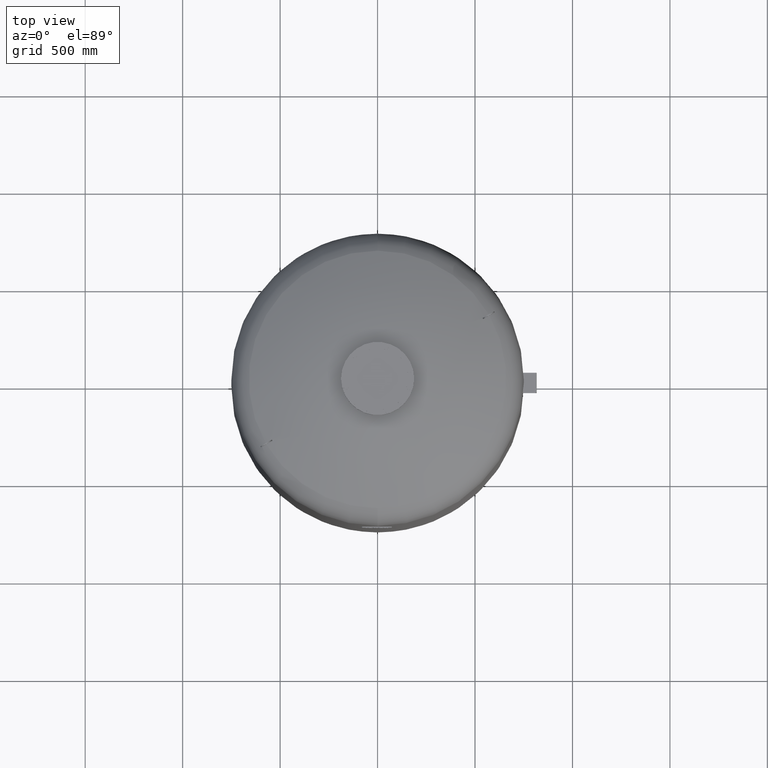
[diagram: clean part render]
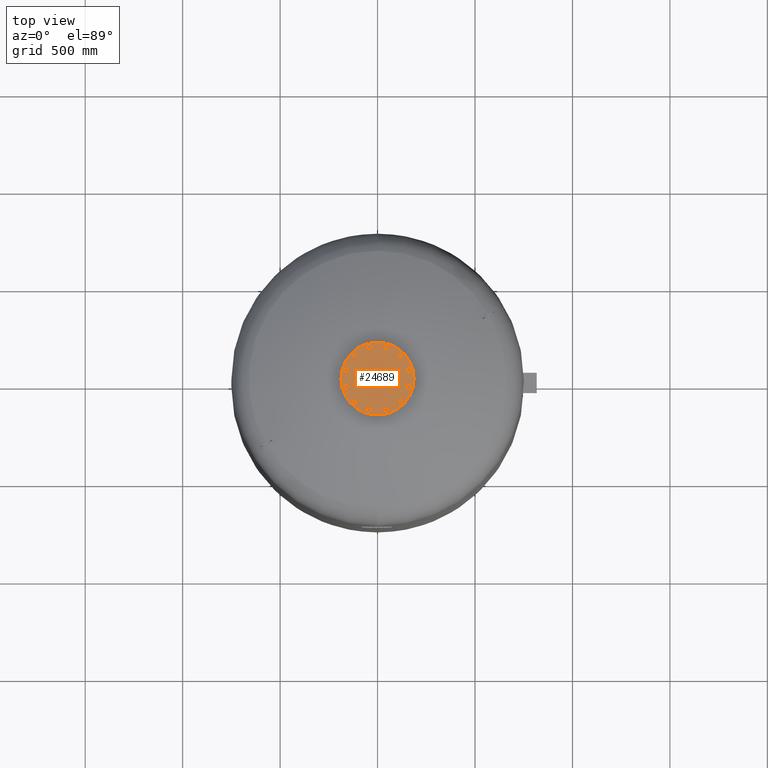
[diagram: same view with one face highlighted and labeled with its STEP entity id]
A machine part, top view. The second image highlights one B-rep face of the part: STEP entity #24689.
In plain terms, the highlighted planar face has unit normal (0, 0, 1).
Its self-contained STEP definition (entity closure, byte-faithful):
#16927=CARTESIAN_POINT('',(-187.500000000000000,0.0,3055.0));
#16928=VERTEX_POINT('',#16927);
#16944=CARTESIAN_POINT('',(187.500000000000000,-2.296137E-014,3055.0));
#16945=VERTEX_POINT('',#16944);
#16952=CARTESIAN_POINT('',(0.0,0.0,3055.0));
#16953=DIRECTION('',(0.0,0.0,-1.0));
#16954=DIRECTION('',(-1.0,0.0,0.0));
#16955=AXIS2_PLACEMENT_3D('',#16952,#16953,#16954);
#16956=CIRCLE('',#16955,187.500000000000000);
#16957=EDGE_CURVE('',#16945,#16928,#16956,.T.);
#22183=CARTESIAN_POINT('',(157.729139400922860,30.104983413641008,3055.0));
#22184=VERTEX_POINT('',#22183);
#22185=CARTESIAN_POINT('',(148.288440171855850,40.247625971983268,3055.0));
#22186=VERTEX_POINT('',#22185);
#22187=CARTESIAN_POINT('',(157.729139400922860,30.104983413641008,3055.0));
#22188=DIRECTION('',(-0.681323780155013,0.731982176419128,0.0));
#22189=VECTOR('',#22188,13.856406460551090);
#22190=LINE('',#22187,#22189);
#22191=EDGE_CURVE('',#22184,#22186,#22190,.T.);
#22223=CARTESIAN_POINT('',(171.233275132485970,33.209547496330110,3055.0));
#22224=VERTEX_POINT('',#22223);
#22225=CARTESIAN_POINT('',(171.233275132485970,33.209547496330110,3055.0));
#22226=DIRECTION('',(-0.974577049973894,-0.224052613607123,0.0));
#22227=VECTOR('',#22226,13.856406460551119);
#22228=LINE('',#22225,#22227);
#22229=EDGE_CURVE('',#22224,#22184,#22228,.T.);
#22254=CARTESIAN_POINT('',(175.296711634982050,46.456754137361422,3055.0));
#22255=VERTEX_POINT('',#22254);
#22256=CARTESIAN_POINT('',(175.296711634982050,46.456754137361422,3055.0));
#22257=DIRECTION('',(-0.293253269818881,-0.956034790026249,0.0));
#22258=VECTOR('',#22257,13.856406460551076);
#22259=LINE('',#22256,#22258);
#22260=EDGE_CURVE('',#22255,#22224,#22259,.T.);
#22285=CARTESIAN_POINT('',(152.351876674351930,53.494832613014587,3055.0));
#22286=VERTEX_POINT('',#22285);
#22287=CARTESIAN_POINT('',(148.288440171855850,40.247625971983268,3055.0));
#22288=DIRECTION('',(0.293253269818881,0.956034790026249,0.0));
#22289=VECTOR('',#22288,13.856406460551083);
#22290=LINE('',#22287,#22289);
#22291=EDGE_CURVE('',#22186,#22286,#22290,.T.);
#22316=CARTESIAN_POINT('',(165.856012405915040,56.599396695703689,3055.0));
#22317=VERTEX_POINT('',#22316);
#22318=CARTESIAN_POINT('',(152.351876674351930,53.494832613014587,3055.0));
#22319=DIRECTION('',(0.974577049973894,0.224052613607123,0.0));
#22320=VECTOR('',#22319,13.856406460551119);
#22321=LINE('',#22318,#22320);
#22322=EDGE_CURVE('',#22286,#22317,#22321,.T.);
#22347=CARTESIAN_POINT('',(165.856012405915040,56.599396695703689,3055.0));
#22348=DIRECTION('',(0.681323780155012,-0.731982176419129,0.0));
#22349=VECTOR('',#22348,13.856406460551096);
#22350=LINE('',#22347,#22349);
#22351=EDGE_CURVE('',#22317,#22255,#22350,.T.);
#22383=CARTESIAN_POINT('',(121.544949931435720,104.936250117183760,3055.0));
#22384=VERTEX_POINT('',#22383);
#22385=CARTESIAN_POINT('',(108.297743290404380,108.999686619679820,3055.0));
#22386=VERTEX_POINT('',#22385);
#22387=CARTESIAN_POINT('',(121.544949931435720,104.936250117183760,3055.0));
#22388=DIRECTION('',(-0.956034790026250,0.293253269818880,0.0));
#22389=VECTOR('',#22388,13.856406460551101);
#22390=LINE('',#22387,#22389);
#22391=EDGE_CURVE('',#22384,#22386,#22390,.T.);
#22423=CARTESIAN_POINT('',(131.687592489777960,114.376949346250780,3055.0));
#22424=VERTEX_POINT('',#22423);
#22425=CARTESIAN_POINT('',(131.687592489777960,114.376949346250780,3055.0));
#22426=DIRECTION('',(-0.731982176419127,-0.681323780155014,0.0));
#22427=VECTOR('',#22426,13.856406460551080);
#22428=LINE('',#22425,#22427);
#22429=EDGE_CURVE('',#22424,#22384,#22428,.T.);
#22454=CARTESIAN_POINT('',(128.583028407088880,127.881085077813880,3055.0));
#22455=VERTEX_POINT('',#22454);
#22456=CARTESIAN_POINT('',(128.583028407088880,127.881085077813880,3055.0));
#22457=DIRECTION('',(0.224052613607122,-0.974577049973894,0.0));
#22458=VECTOR('',#22457,13.856406460551099);
#22459=LINE('',#22456,#22458);
#22460=EDGE_CURVE('',#22455,#22424,#22459,.T.);
#22485=CARTESIAN_POINT('',(105.193179207715300,122.503822351242900,3055.0));
#22486=VERTEX_POINT('',#22485);
#22487=CARTESIAN_POINT('',(108.297743290404380,108.999686619679820,3055.0));
#22488=DIRECTION('',(-0.224052613607122,0.974577049973894,0.0));
#22489=VECTOR('',#22488,13.856406460551087);
#22490=LINE('',#22487,#22489);
#22491=EDGE_CURVE('',#22386,#22486,#22490,.T.);
#22516=CARTESIAN_POINT('',(115.335821766057560,131.944521580309950,3055.0));
#22517=VERTEX_POINT('',#22516);
#22518=CARTESIAN_POINT('',(105.193179207715300,122.503822351242900,3055.0));
#22519=DIRECTION('',(0.731982176419127,0.681323780155014,0.0));
#22520=VECTOR('',#22519,13.856406460551121);
#22521=LINE('',#22518,#22520);
#22522=EDGE_CURVE('',#22486,#22517,#22521,.T.);
#22547=CARTESIAN_POINT('',(115.335821766057560,131.944521580309950,3055.0));
#22548=DIRECTION('',(0.956034790026249,-0.293253269818881,0.0));
#22549=VECTOR('',#22548,13.856406460551076);
#22550=LINE('',#22547,#22549);
#22551=EDGE_CURVE('',#22517,#22455,#22550,.T.);
#22583=CARTESIAN_POINT('',(52.792889283739193,151.649933345076730,3055.0));
#22584=VERTEX_POINT('',#22583);
#22585=CARTESIAN_POINT('',(39.288753552176118,148.545369262387680,3055.0));
#22586=VERTEX_POINT('',#22585);
#22587=CARTESIAN_POINT('',(52.792889283739193,151.649933345076730,3055.0));
#22588=DIRECTION('',(-0.974577049973894,-0.224052613607120,0.0));
#22589=VECTOR('',#22588,13.856406460551073);
#22590=LINE('',#22587,#22589);
#22591=EDGE_CURVE('',#22584,#22586,#22590,.T.);
#22623=CARTESIAN_POINT('',(56.856325786235274,164.897139986108100,3055.0));
#22624=VERTEX_POINT('',#22623);
#22625=CARTESIAN_POINT('',(56.856325786235274,164.897139986108100,3055.0));
#22626=DIRECTION('',(-0.293253269818881,-0.956034790026249,0.0));
#22627=VECTOR('',#22626,13.856406460551133);
#22628=LINE('',#22625,#22627);
#22629=EDGE_CURVE('',#22624,#22584,#22628,.T.);
#22654=CARTESIAN_POINT('',(47.415626557168267,175.039782544450330,3055.0));
#22655=VERTEX_POINT('',#22654);
#22656=CARTESIAN_POINT('',(47.415626557168267,175.039782544450330,3055.0));
#22657=DIRECTION('',(0.681323780155014,-0.731982176419128,0.0));
#22658=VECTOR('',#22657,13.856406460551069);
#22659=LINE('',#22656,#22658);
#22660=EDGE_CURVE('',#22655,#22624,#22659,.T.);
#22685=CARTESIAN_POINT('',(29.848054323109103,158.688011820729910,3055.0));
#22686=VERTEX_POINT('',#22685);
#22687=CARTESIAN_POINT('',(39.288753552176118,148.545369262387680,3055.0));
#22688=DIRECTION('',(-0.681323780155014,0.731982176419127,0.0));
#22689=VECTOR('',#22688,13.856406460551076);
#22690=LINE('',#22687,#22689);
#22691=EDGE_CURVE('',#22586,#22686,#22690,.T.);
#22716=CARTESIAN_POINT('',(33.911490825605156,171.935218461761250,3055.0));
#22717=VERTEX_POINT('',#22716);
#22718=CARTESIAN_POINT('',(29.848054323109103,158.688011820729910,3055.0));
#22719=DIRECTION('',(0.293253269818879,0.956034790026250,0.0));
#22720=VECTOR('',#22719,13.856406460551097);
#22721=LINE('',#22718,#22720);
#22722=EDGE_CURVE('',#22686,#22717,#22721,.T.);
#22747=CARTESIAN_POINT('',(33.911490825605156,171.935218461761250,3055.0));
#22748=DIRECTION('',(0.974577049973894,0.224052613607121,0.0));
#22749=VECTOR('',#22748,13.856406460551113);
#22750=LINE('',#22747,#22749);
#22751=EDGE_CURVE('',#22717,#22655,#22750,.T.);
#22783=CARTESIAN_POINT('',(-30.104983413641008,157.729139400922860,3055.0));
#22784=VERTEX_POINT('',#22783);
#22785=CARTESIAN_POINT('',(-40.247625971983268,148.288440171855850,3055.0));
#22786=VERTEX_POINT('',#22785);
#22787=CARTESIAN_POINT('',(-30.104983413641008,157.729139400922860,3055.0));
#22788=DIRECTION('',(-0.731982176419128,-0.681323780155013,0.0));
#22789=VECTOR('',#22788,13.856406460551090);
#22790=LINE('',#22787,#22789);
#22791=EDGE_CURVE('',#22784,#22786,#22790,.T.);
#22823=CARTESIAN_POINT('',(-33.209547496330110,171.233275132485970,3055.0));
#22824=VERTEX_POINT('',#22823);
#22825=CARTESIAN_POINT('',(-33.209547496330110,171.233275132485970,3055.0));
#22826=DIRECTION('',(0.224052613607123,-0.974577049973894,0.0));
#22827=VECTOR('',#22826,13.856406460551119);
#22828=LINE('',#22825,#22827);
#22829=EDGE_CURVE('',#22824,#22784,#22828,.T.);
#22854=CARTESIAN_POINT('',(-46.456754137361422,175.296711634982050,3055.0));
#22855=VERTEX_POINT('',#22854);
#22856=CARTESIAN_POINT('',(-46.456754137361422,175.296711634982050,3055.0));
#22857=DIRECTION('',(0.956034790026249,-0.293253269818881,0.0));
#22858=VECTOR('',#22857,13.856406460551076);
#22859=LINE('',#22856,#22858);
#22860=EDGE_CURVE('',#22855,#22824,#22859,.T.);
#22885=CARTESIAN_POINT('',(-53.494832613014587,152.351876674351930,3055.0));
#22886=VERTEX_POINT('',#22885);
#22887=CARTESIAN_POINT('',(-40.247625971983268,148.288440171855850,3055.0));
#22888=DIRECTION('',(-0.956034790026249,0.293253269818881,0.0));
#22889=VECTOR('',#22888,13.856406460551083);
#22890=LINE('',#22887,#22889);
#22891=EDGE_CURVE('',#22786,#22886,#22890,.T.);
#22916=CARTESIAN_POINT('',(-56.599396695703689,165.856012405915040,3055.0));
#22917=VERTEX_POINT('',#22916);
#22918=CARTESIAN_POINT('',(-53.494832613014587,152.351876674351930,3055.0));
#22919=DIRECTION('',(-0.224052613607123,0.974577049973894,0.0));
#22920=VECTOR('',#22919,13.856406460551119);
#22921=LINE('',#22918,#22920);
#22922=EDGE_CURVE('',#22886,#22917,#22921,.T.);
#22947=CARTESIAN_POINT('',(-56.599396695703689,165.856012405915040,3055.0));
#22948=DIRECTION('',(0.731982176419129,0.681323780155012,0.0));
#22949=VECTOR('',#22948,13.856406460551096);
#22950=LINE('',#22947,#22949);
#22951=EDGE_CURVE('',#22917,#22855,#22950,.T.);
#22983=CARTESIAN_POINT('',(-104.936250117183700,121.544949931435750,3055.0));
#22984=VERTEX_POINT('',#22983);
#22985=CARTESIAN_POINT('',(-108.999686619679760,108.297743290404440,3055.0));
#22986=VERTEX_POINT('',#22985);
#22987=CARTESIAN_POINT('',(-104.936250117183700,121.544949931435750,3055.0));
#22988=DIRECTION('',(-0.293253269818880,-0.956034790026249,0.0));
#22989=VECTOR('',#22988,13.856406460551073);
#22990=LINE('',#22987,#22989);
#22991=EDGE_CURVE('',#22984,#22986,#22990,.T.);
#23023=CARTESIAN_POINT('',(-114.376949346250730,131.687592489778010,3055.0));
#23024=VERTEX_POINT('',#23023);
#23025=CARTESIAN_POINT('',(-114.376949346250730,131.687592489778010,3055.0));
#23026=DIRECTION('',(0.681323780155013,-0.731982176419128,0.0));
#23027=VECTOR('',#23026,13.856406460551101);
#23028=LINE('',#23025,#23027);
#23029=EDGE_CURVE('',#23024,#22984,#23028,.T.);
#23054=CARTESIAN_POINT('',(-127.881085077813810,128.583028407088930,3055.0));
#23055=VERTEX_POINT('',#23054);
#23056=CARTESIAN_POINT('',(-127.881085077813810,128.583028407088930,3055.0));
#23057=DIRECTION('',(0.974577049973894,0.224052613607122,0.0));
#23058=VECTOR('',#23057,13.856406460551087);
#23059=LINE('',#23056,#23058);
#23060=EDGE_CURVE('',#23055,#23024,#23059,.T.);
#23085=CARTESIAN_POINT('',(-122.503822351242850,105.193179207715360,3055.0));
#23086=VERTEX_POINT('',#23085);
#23087=CARTESIAN_POINT('',(-108.999686619679760,108.297743290404440,3055.0));
#23088=DIRECTION('',(-0.974577049973894,-0.224052613607122,0.0));
#23089=VECTOR('',#23088,13.856406460551087);
#23090=LINE('',#23087,#23089);
#23091=EDGE_CURVE('',#22986,#23086,#23090,.T.);
#23116=CARTESIAN_POINT('',(-131.944521580309900,115.335821766057620,3055.0));
#23117=VERTEX_POINT('',#23116);
#23118=CARTESIAN_POINT('',(-122.503822351242850,105.193179207715360,3055.0));
#23119=DIRECTION('',(-0.681323780155014,0.731982176419127,0.0));
#23120=VECTOR('',#23119,13.856406460551121);
#23121=LINE('',#23118,#23120);
#23122=EDGE_CURVE('',#23086,#23117,#23121,.T.);
#23147=CARTESIAN_POINT('',(-131.944521580309900,115.335821766057620,3055.0));
#23148=DIRECTION('',(0.293253269818882,0.956034790026249,0.0));
#23149=VECTOR('',#23148,13.856406460551081);
#23150=LINE('',#23147,#23149);
#23151=EDGE_CURVE('',#23117,#23055,#23150,.T.);
#23183=CARTESIAN_POINT('',(-151.649933345076730,52.792889283739214,3055.0));
#23184=VERTEX_POINT('',#23183);
#23185=CARTESIAN_POINT('',(-148.545369262387650,39.288753552176125,3055.0));
#23186=VERTEX_POINT('',#23185);
#23187=CARTESIAN_POINT('',(-151.649933345076730,52.792889283739214,3055.0));
#23188=DIRECTION('',(0.224052613607122,-0.974577049973894,0.0));
#23189=VECTOR('',#23188,13.856406460551092);
#23190=LINE('',#23187,#23189);
#23191=EDGE_CURVE('',#23184,#23186,#23190,.T.);
#23223=CARTESIAN_POINT('',(-164.897139986108100,56.856325786235296,3055.0));
#23224=VERTEX_POINT('',#23223);
#23225=CARTESIAN_POINT('',(-164.897139986108100,56.856325786235296,3055.0));
#23226=DIRECTION('',(0.956034790026249,-0.293253269818881,0.0));
#23227=VECTOR('',#23226,13.856406460551133);
#23228=LINE('',#23225,#23227);
#23229=EDGE_CURVE('',#23224,#23184,#23228,.T.);
#23254=CARTESIAN_POINT('',(-175.039782544450300,47.415626557168260,3055.0));
#23255=VERTEX_POINT('',#23254);
#23256=CARTESIAN_POINT('',(-175.039782544450300,47.415626557168260,3055.0));
#23257=DIRECTION('',(0.731982176419126,0.681323780155016,0.0));
#23258=VECTOR('',#23257,13.856406460551069);
#23259=LINE('',#23256,#23258);
#23260=EDGE_CURVE('',#23255,#23224,#23259,.T.);
#23285=CARTESIAN_POINT('',(-158.688011820729910,29.848054323109110,3055.0));
#23286=VERTEX_POINT('',#23285);
#23287=CARTESIAN_POINT('',(-148.545369262387650,39.288753552176125,3055.0));
#23288=DIRECTION('',(-0.731982176419128,-0.681323780155013,0.0));
#23289=VECTOR('',#23288,13.856406460551096);
#23290=LINE('',#23287,#23289);
#23291=EDGE_CURVE('',#23186,#23286,#23290,.T.);
#23316=CARTESIAN_POINT('',(-171.935218461761250,33.911490825605171,3055.0));
#23317=VERTEX_POINT('',#23316);
#23318=CARTESIAN_POINT('',(-158.688011820729910,29.848054323109110,3055.0));
#23319=DIRECTION('',(-0.956034790026250,0.293253269818880,0.0));
#23320=VECTOR('',#23319,13.856406460551101);
#23321=LINE('',#23318,#23320);
#23322=EDGE_CURVE('',#23286,#23317,#23321,.T.);
#23347=CARTESIAN_POINT('',(-171.935218461761250,33.911490825605171,3055.0));
#23348=DIRECTION('',(-0.224052613607120,0.974577049973894,0.0));
#23349=VECTOR('',#23348,13.856406460551087);
#23350=LINE('',#23347,#23349);
#23351=EDGE_CURVE('',#23317,#23255,#23350,.T.);
#23383=CARTESIAN_POINT('',(-157.729139400922860,-30.104983413640987,3055.0));
#23384=VERTEX_POINT('',#23383);
#23385=CARTESIAN_POINT('',(-148.288440171855850,-40.247625971983247,3055.0));
#23386=VERTEX_POINT('',#23385);
#23387=CARTESIAN_POINT('',(-157.729139400922860,-30.104983413640987,3055.0));
#23388=DIRECTION('',(0.681323780155013,-0.731982176419128,0.0));
#23389=VECTOR('',#23388,13.856406460551090);
#23390=LINE('',#23387,#23389);
#23391=EDGE_CURVE('',#23384,#23386,#23390,.T.);
#23423=CARTESIAN_POINT('',(-171.233275132486000,-33.209547496330096,3055.0));
#23424=VERTEX_POINT('',#23423);
#23425=CARTESIAN_POINT('',(-171.233275132486000,-33.209547496330096,3055.0));
#23426=DIRECTION('',(0.974577049973894,0.224052613607123,0.0));
#23427=VECTOR('',#23426,13.856406460551147);
#23428=LINE('',#23425,#23427);
#23429=EDGE_CURVE('',#23424,#23384,#23428,.T.);
#23454=CARTESIAN_POINT('',(-175.296711634982050,-46.456754137361401,3055.0));
#23455=VERTEX_POINT('',#23454);
#23456=CARTESIAN_POINT('',(-175.296711634982050,-46.456754137361401,3055.0));
#23457=DIRECTION('',(0.293253269818880,0.956034790026250,0.0));
#23458=VECTOR('',#23457,13.856406460551062);
#23459=LINE('',#23456,#23458);
#23460=EDGE_CURVE('',#23455,#23424,#23459,.T.);
#23485=CARTESIAN_POINT('',(-152.351876674351960,-53.494832613014580,3055.0));
#23486=VERTEX_POINT('',#23485);
#23487=CARTESIAN_POINT('',(-148.288440171855850,-40.247625971983247,3055.0));
#23488=DIRECTION('',(-0.293253269818883,-0.956034790026249,0.0));
#23489=VECTOR('',#23488,13.856406460551106);
#23490=LINE('',#23487,#23489);
#23491=EDGE_CURVE('',#23386,#23486,#23490,.T.);
#23516=CARTESIAN_POINT('',(-165.856012405915070,-56.599396695703646,3055.0));
#23517=VERTEX_POINT('',#23516);
#23518=CARTESIAN_POINT('',(-152.351876674351960,-53.494832613014580,3055.0));
#23519=DIRECTION('',(-0.974577049973894,-0.224052613607121,0.0));
#23520=VECTOR('',#23519,13.856406460551110);
#23521=LINE('',#23518,#23520);
#23522=EDGE_CURVE('',#23486,#23517,#23521,.T.);
#23547=CARTESIAN_POINT('',(-165.856012405915070,-56.599396695703646,3055.0));
#23548=DIRECTION('',(-0.681323780155012,0.731982176419129,0.0));
#23549=VECTOR('',#23548,13.856406460551062);
#23550=LINE('',#23547,#23549);
#23551=EDGE_CURVE('',#23517,#23455,#23550,.T.);
#23583=CARTESIAN_POINT('',(-121.544949931435750,-104.936250117183680,3055.0));
#23584=VERTEX_POINT('',#23583);
#23585=CARTESIAN_POINT('',(-108.297743290404440,-108.999686619679760,3055.0));
#23586=VERTEX_POINT('',#23585);
#23587=CARTESIAN_POINT('',(-121.544949931435750,-104.936250117183680,3055.0));
#23588=DIRECTION('',(0.956034790026249,-0.293253269818882,0.0));
#23589=VECTOR('',#23588,13.856406460551081);
#23590=LINE('',#23587,#23589);
#23591=EDGE_CURVE('',#23584,#23586,#23590,.T.);
#23623=CARTESIAN_POINT('',(-131.687592489778010,-114.376949346250730,3055.0));
#23624=VERTEX_POINT('',#23623);
#23625=CARTESIAN_POINT('',(-131.687592489778010,-114.376949346250730,3055.0));
#23626=DIRECTION('',(0.731982176419127,0.681323780155014,0.0));
#23627=VECTOR('',#23626,13.856406460551121);
#23628=LINE('',#23625,#23627);
#23629=EDGE_CURVE('',#23624,#23584,#23628,.T.);
#23654=CARTESIAN_POINT('',(-128.583028407088930,-127.881085077813790,3055.0));
#23655=VERTEX_POINT('',#23654);
#23656=CARTESIAN_POINT('',(-128.583028407088930,-127.881085077813790,3055.0));
#23657=DIRECTION('',(-0.224052613607122,0.974577049973894,0.0));
#23658=VECTOR('',#23657,13.856406460551071);
#23659=LINE('',#23656,#23658);
#23660=EDGE_CURVE('',#23655,#23624,#23659,.T.);
#23685=CARTESIAN_POINT('',(-105.193179207715360,-122.503822351242850,3055.0));
#23686=VERTEX_POINT('',#23685);
#23687=CARTESIAN_POINT('',(-108.297743290404440,-108.999686619679760,3055.0));
#23688=DIRECTION('',(0.224052613607122,-0.974577049973894,0.0));
#23689=VECTOR('',#23688,13.856406460551087);
#23690=LINE('',#23687,#23689);
#23691=EDGE_CURVE('',#23586,#23686,#23690,.T.);
#23716=CARTESIAN_POINT('',(-115.335821766057620,-131.944521580309900,3055.0));
#23717=VERTEX_POINT('',#23716);
#23718=CARTESIAN_POINT('',(-105.193179207715360,-122.503822351242850,3055.0));
#23719=DIRECTION('',(-0.731982176419127,-0.681323780155014,0.0));
#23720=VECTOR('',#23719,13.856406460551121);
#23721=LINE('',#23718,#23720);
#23722=EDGE_CURVE('',#23686,#23717,#23721,.T.);
#23747=CARTESIAN_POINT('',(-115.335821766057620,-131.944521580309900,3055.0));
#23748=DIRECTION('',(-0.956034790026249,0.293253269818883,0.0));
#23749=VECTOR('',#23748,13.856406460551085);
#23750=LINE('',#23747,#23749);
#23751=EDGE_CURVE('',#23717,#23655,#23750,.T.);
#23783=CARTESIAN_POINT('',(-52.792889283739228,-151.649933345076730,3055.0));
#23784=VERTEX_POINT('',#23783);
#23785=CARTESIAN_POINT('',(-39.288753552176132,-148.545369262387680,3055.0));
#23786=VERTEX_POINT('',#23785);
#23787=CARTESIAN_POINT('',(-52.792889283739228,-151.649933345076730,3055.0));
#23788=DIRECTION('',(0.974577049973894,0.224052613607120,0.0));
#23789=VECTOR('',#23788,13.856406460551094);
#23790=LINE('',#23787,#23789);
#23791=EDGE_CURVE('',#23784,#23786,#23790,.T.);
#23823=CARTESIAN_POINT('',(-56.856325786235296,-164.897139986108100,3055.0));
#23824=VERTEX_POINT('',#23823);
#23825=CARTESIAN_POINT('',(-56.856325786235296,-164.897139986108100,3055.0));
#23826=DIRECTION('',(0.293253269818880,0.956034790026250,0.0));
#23827=VECTOR('',#23826,13.856406460551129);
#23828=LINE('',#23825,#23827);
#23829=EDGE_CURVE('',#23824,#23784,#23828,.T.);
#23854=CARTESIAN_POINT('',(-47.415626557168281,-175.039782544450300,3055.0));
#23855=VERTEX_POINT('',#23854);
#23856=CARTESIAN_POINT('',(-47.415626557168281,-175.039782544450300,3055.0));
#23857=DIRECTION('',(-0.681323780155015,0.731982176419126,0.0));
#23858=VECTOR('',#23857,13.856406460551055);
#23859=LINE('',#23856,#23858);
#23860=EDGE_CURVE('',#23855,#23824,#23859,.T.);
#23885=CARTESIAN_POINT('',(-29.848054323109121,-158.688011820729910,3055.0));
#23886=VERTEX_POINT('',#23885);
#23887=CARTESIAN_POINT('',(-39.288753552176132,-148.545369262387680,3055.0));
#23888=DIRECTION('',(0.681323780155014,-0.731982176419127,0.0));
#23889=VECTOR('',#23888,13.856406460551073);
#23890=LINE('',#23887,#23889);
#23891=EDGE_CURVE('',#23786,#23886,#23890,.T.);
#23916=CARTESIAN_POINT('',(-33.911490825605199,-171.935218461761280,3055.0));
#23917=VERTEX_POINT('',#23916);
#23918=CARTESIAN_POINT('',(-29.848054323109121,-158.688011820729910,3055.0));
#23919=DIRECTION('',(-0.293253269818880,-0.956034790026249,0.0));
#23920=VECTOR('',#23919,13.856406460551133);
#23921=LINE('',#23918,#23920);
#23922=EDGE_CURVE('',#23886,#23917,#23921,.T.);
#23947=CARTESIAN_POINT('',(-33.911490825605199,-171.935218461761280,3055.0));
#23948=DIRECTION('',(-0.974577049973895,-0.224052613607118,0.0));
#23949=VECTOR('',#23948,13.856406460551074);
#23950=LINE('',#23947,#23949);
#23951=EDGE_CURVE('',#23917,#23855,#23950,.T.);
#23983=CARTESIAN_POINT('',(30.104983413640952,-157.729139400922890,3055.0));
#23984=VERTEX_POINT('',#23983);
#23985=CARTESIAN_POINT('',(40.247625971983211,-148.288440171855880,3055.0));
#23986=VERTEX_POINT('',#23985);
#23987=CARTESIAN_POINT('',(30.104983413640952,-157.729139400922890,3055.0));
#23988=DIRECTION('',(0.731982176419128,0.681323780155013,0.0));
#23989=VECTOR('',#23988,13.856406460551090);
#23990=LINE('',#23987,#23989);
#23991=EDGE_CURVE('',#23984,#23986,#23990,.T.);
#24023=CARTESIAN_POINT('',(33.209547496330039,-171.233275132486000,3055.0));
#24024=VERTEX_POINT('',#24023);
#24025=CARTESIAN_POINT('',(33.209547496330039,-171.233275132486000,3055.0));
#24026=DIRECTION('',(-0.224052613607122,0.974577049973894,0.0));
#24027=VECTOR('',#24026,13.856406460551115);
#24028=LINE('',#24025,#24027);
#24029=EDGE_CURVE('',#24024,#23984,#24028,.T.);
#24054=CARTESIAN_POINT('',(46.456754137361351,-175.296711634982070,3055.0));
#24055=VERTEX_POINT('',#24054);
#24056=CARTESIAN_POINT('',(46.456754137361351,-175.296711634982070,3055.0));
#24057=DIRECTION('',(-0.956034790026249,0.293253269818881,0.0));
#24058=VECTOR('',#24057,13.856406460551076);
#24059=LINE('',#24056,#24058);
#24060=EDGE_CURVE('',#24055,#24024,#24059,.T.);
#24085=CARTESIAN_POINT('',(53.494832613014523,-152.351876674351960,3055.0));
#24086=VERTEX_POINT('',#24085);
#24087=CARTESIAN_POINT('',(40.247625971983211,-148.288440171855880,3055.0));
#24088=DIRECTION('',(0.956034790026249,-0.293253269818881,0.0));
#24089=VECTOR('',#24088,13.856406460551076);
#24090=LINE('',#24087,#24089);
#24091=EDGE_CURVE('',#23986,#24086,#24090,.T.);
#24116=CARTESIAN_POINT('',(56.599396695703625,-165.856012405915070,3055.0));
#24117=VERTEX_POINT('',#24116);
#24118=CARTESIAN_POINT('',(53.494832613014523,-152.351876674351960,3055.0));
#24119=DIRECTION('',(0.224052613607123,-0.974577049973894,0.0));
#24120=VECTOR('',#24119,13.856406460551119);
#24121=LINE('',#24118,#24120);
#24122=EDGE_CURVE('',#24086,#24117,#24121,.T.);
#24147=CARTESIAN_POINT('',(56.599396695703625,-165.856012405915070,3055.0));
#24148=DIRECTION('',(-0.731982176419129,-0.681323780155012,0.0));
#24149=VECTOR('',#24148,13.856406460551101);
#24150=LINE('',#24147,#24149);
#24151=EDGE_CURVE('',#24117,#24055,#24150,.T.);
#24183=CARTESIAN_POINT('',(104.936250117183660,-121.544949931435800,3055.0));
#24184=VERTEX_POINT('',#24183);
#24185=CARTESIAN_POINT('',(108.999686619679750,-108.297743290404470,3055.0));
#24186=VERTEX_POINT('',#24185);
#24187=CARTESIAN_POINT('',(104.936250117183660,-121.544949931435800,3055.0));
#24188=DIRECTION('',(0.293253269818882,0.956034790026249,0.0));
#24189=VECTOR('',#24188,13.856406460551094);
#24190=LINE('',#24187,#24189);
#24191=EDGE_CURVE('',#24184,#24186,#24190,.T.);
#24223=CARTESIAN_POINT('',(114.376949346250710,-131.687592489778040,3055.0));
#24224=VERTEX_POINT('',#24223);
#24225=CARTESIAN_POINT('',(114.376949346250710,-131.687592489778040,3055.0));
#24226=DIRECTION('',(-0.681323780155015,0.731982176419126,0.0));
#24227=VECTOR('',#24226,13.856406460551110);
#24228=LINE('',#24225,#24227);
#24229=EDGE_CURVE('',#24224,#24184,#24228,.T.);
#24254=CARTESIAN_POINT('',(127.881085077813760,-128.583028407088960,3055.0));
#24255=VERTEX_POINT('',#24254);
#24256=CARTESIAN_POINT('',(127.881085077813760,-128.583028407088960,3055.0));
#24257=DIRECTION('',(-0.974577049973894,-0.224052613607122,0.0));
#24258=VECTOR('',#24257,13.856406460551058);
#24259=LINE('',#24256,#24258);
#24260=EDGE_CURVE('',#24255,#24224,#24259,.T.);
#24285=CARTESIAN_POINT('',(122.503822351242830,-105.193179207715390,3055.0));
#24286=VERTEX_POINT('',#24285);
#24287=CARTESIAN_POINT('',(108.999686619679750,-108.297743290404470,3055.0));
#24288=DIRECTION('',(0.974577049973894,0.224052613607122,0.0));
#24289=VECTOR('',#24288,13.856406460551087);
#24290=LINE('',#24287,#24289);
#24291=EDGE_CURVE('',#24186,#24286,#24290,.T.);
#24316=CARTESIAN_POINT('',(131.944521580309870,-115.335821766057650,3055.0));
#24317=VERTEX_POINT('',#24316);
#24318=CARTESIAN_POINT('',(122.503822351242830,-105.193179207715390,3055.0));
#24319=DIRECTION('',(0.681323780155014,-0.731982176419127,0.0));
#24320=VECTOR('',#24319,13.856406460551110);
#24321=LINE('',#24318,#24320);
#24322=EDGE_CURVE('',#24286,#24317,#24321,.T.);
#24347=CARTESIAN_POINT('',(131.944521580309870,-115.335821766057650,3055.0));
#24348=DIRECTION('',(-0.293253269818883,-0.956034790026249,0.0));
#24349=VECTOR('',#24348,13.856406460551085);
#24350=LINE('',#24347,#24349);
#24351=EDGE_CURVE('',#24317,#24255,#24350,.T.);
#24383=CARTESIAN_POINT('',(151.649933345076730,-52.792889283739228,3055.0));
#24384=VERTEX_POINT('',#24383);
#24385=CARTESIAN_POINT('',(148.545369262387650,-39.288753552176139,3055.0));
#24386=VERTEX_POINT('',#24385);
#24387=CARTESIAN_POINT('',(151.649933345076730,-52.792889283739228,3055.0));
#24388=DIRECTION('',(-0.224052613607122,0.974577049973894,0.0));
#24389=VECTOR('',#24388,13.856406460551092);
#24390=LINE('',#24387,#24389);
#24391=EDGE_CURVE('',#24384,#24386,#24390,.T.);
#24423=CARTESIAN_POINT('',(164.897139986108070,-56.856325786235303,3055.0));
#24424=VERTEX_POINT('',#24423);
#24425=CARTESIAN_POINT('',(164.897139986108070,-56.856325786235303,3055.0));
#24426=DIRECTION('',(-0.956034790026249,0.293253269818881,0.0));
#24427=VECTOR('',#24426,13.856406460551105);
#24428=LINE('',#24425,#24427);
#24429=EDGE_CURVE('',#24424,#24384,#24428,.T.);
#24454=CARTESIAN_POINT('',(175.039782544450300,-47.415626557168295,3055.0));
#24455=VERTEX_POINT('',#24454);
#24456=CARTESIAN_POINT('',(175.039782544450300,-47.415626557168295,3055.0));
#24457=DIRECTION('',(-0.731982176419128,-0.681323780155014,0.0));
#24458=VECTOR('',#24457,13.856406460551069);
#24459=LINE('',#24456,#24458);
#24460=EDGE_CURVE('',#24455,#24424,#24459,.T.);
#24485=CARTESIAN_POINT('',(158.688011820729910,-29.848054323109132,3055.0));
#24486=VERTEX_POINT('',#24485);
#24487=CARTESIAN_POINT('',(148.545369262387650,-39.288753552176139,3055.0));
#24488=DIRECTION('',(0.731982176419128,0.681323780155013,0.0));
#24489=VECTOR('',#24488,13.856406460551090);
#24490=LINE('',#24487,#24489);
#24491=EDGE_CURVE('',#24386,#24486,#24490,.T.);
#24516=CARTESIAN_POINT('',(171.935218461761250,-33.911490825605206,3055.0));
#24517=VERTEX_POINT('',#24516);
#24518=CARTESIAN_POINT('',(158.688011820729910,-29.848054323109132,3055.0));
#24519=DIRECTION('',(0.956034790026249,-0.293253269818881,0.0));
#24520=VECTOR('',#24519,13.856406460551105);
#24521=LINE('',#24518,#24520);
#24522=EDGE_CURVE('',#24486,#24517,#24521,.T.);
#24547=CARTESIAN_POINT('',(171.935218461761250,-33.911490825605206,3055.0));
#24548=DIRECTION('',(0.224052613607120,-0.974577049973894,0.0));
#24549=VECTOR('',#24548,13.856406460551087);
#24550=LINE('',#24547,#24549);
#24551=EDGE_CURVE('',#24517,#24455,#24550,.T.);
#24578=CARTESIAN_POINT('',(-93.750000000000000,-7.888609E-031,3055.0));
#24579=DIRECTION('',(0.0,0.0,1.0));
#24580=DIRECTION('',(0.0,1.0,0.0));
#24581=AXIS2_PLACEMENT_3D('',#24578,#24579,#24580);
#24582=PLANE('',#24581);
#24583=CARTESIAN_POINT('',(0.0,0.0,3055.0));
#24584=DIRECTION('',(0.0,0.0,-1.0));
#24585=DIRECTION('',(-1.0,0.0,0.0));
#24586=AXIS2_PLACEMENT_3D('',#24583,#24584,#24585);
#24587=CIRCLE('',#24586,187.500000000000000);
#24588=EDGE_CURVE('',#16928,#16945,#24587,.T.);
#24589=ORIENTED_EDGE('',*,*,#24588,.F.);
#24590=ORIENTED_EDGE('',*,*,#16957,.F.);
#24591=EDGE_LOOP('',(#24589,#24590));
#24592=FACE_OUTER_BOUND('',#24591,.T.);
#24593=ORIENTED_EDGE('',*,*,#22191,.T.);
#24594=ORIENTED_EDGE('',*,*,#22291,.T.);
#24595=ORIENTED_EDGE('',*,*,#22322,.T.);
#24596=ORIENTED_EDGE('',*,*,#22351,.T.);
#24597=ORIENTED_EDGE('',*,*,#22260,.T.);
#24598=ORIENTED_EDGE('',*,*,#22229,.T.);
#24599=EDGE_LOOP('',(#24593,#24594,#24595,#24596,#24597,#24598));
#24600=FACE_BOUND('',#24599,.T.);
#24601=ORIENTED_EDGE('',*,*,#22391,.T.);
#24602=ORIENTED_EDGE('',*,*,#22491,.T.);
#24603=ORIENTED_EDGE('',*,*,#22522,.T.);
#24604=ORIENTED_EDGE('',*,*,#22551,.T.);
#24605=ORIENTED_EDGE('',*,*,#22460,.T.);
#24606=ORIENTED_EDGE('',*,*,#22429,.T.);
#24607=EDGE_LOOP('',(#24601,#24602,#24603,#24604,#24605,#24606));
#24608=FACE_BOUND('',#24607,.T.);
#24609=ORIENTED_EDGE('',*,*,#22591,.T.);
#24610=ORIENTED_EDGE('',*,*,#22691,.T.);
#24611=ORIENTED_EDGE('',*,*,#22722,.T.);
#24612=ORIENTED_EDGE('',*,*,#22751,.T.);
#24613=ORIENTED_EDGE('',*,*,#22660,.T.);
#24614=ORIENTED_EDGE('',*,*,#22629,.T.);
#24615=EDGE_LOOP('',(#24609,#24610,#24611,#24612,#24613,#24614));
#24616=FACE_BOUND('',#24615,.T.);
#24617=ORIENTED_EDGE('',*,*,#22791,.T.);
#24618=ORIENTED_EDGE('',*,*,#22891,.T.);
#24619=ORIENTED_EDGE('',*,*,#22922,.T.);
#24620=ORIENTED_EDGE('',*,*,#22951,.T.);
#24621=ORIENTED_EDGE('',*,*,#22860,.T.);
#24622=ORIENTED_EDGE('',*,*,#22829,.T.);
#24623=EDGE_LOOP('',(#24617,#24618,#24619,#24620,#24621,#24622));
#24624=FACE_BOUND('',#24623,.T.);
#24625=ORIENTED_EDGE('',*,*,#22991,.T.);
#24626=ORIENTED_EDGE('',*,*,#23091,.T.);
#24627=ORIENTED_EDGE('',*,*,#23122,.T.);
#24628=ORIENTED_EDGE('',*,*,#23151,.T.);
#24629=ORIENTED_EDGE('',*,*,#23060,.T.);
#24630=ORIENTED_EDGE('',*,*,#23029,.T.);
#24631=EDGE_LOOP('',(#24625,#24626,#24627,#24628,#24629,#24630));
#24632=FACE_BOUND('',#24631,.T.);
#24633=ORIENTED_EDGE('',*,*,#23191,.T.);
#24634=ORIENTED_EDGE('',*,*,#23291,.T.);
#24635=ORIENTED_EDGE('',*,*,#23322,.T.);
#24636=ORIENTED_EDGE('',*,*,#23351,.T.);
#24637=ORIENTED_EDGE('',*,*,#23260,.T.);
#24638=ORIENTED_EDGE('',*,*,#23229,.T.);
#24639=EDGE_LOOP('',(#24633,#24634,#24635,#24636,#24637,#24638));
#24640=FACE_BOUND('',#24639,.T.);
#24641=ORIENTED_EDGE('',*,*,#23391,.T.);
#24642=ORIENTED_EDGE('',*,*,#23491,.T.);
#24643=ORIENTED_EDGE('',*,*,#23522,.T.);
#24644=ORIENTED_EDGE('',*,*,#23551,.T.);
#24645=ORIENTED_EDGE('',*,*,#23460,.T.);
#24646=ORIENTED_EDGE('',*,*,#23429,.T.);
#24647=EDGE_LOOP('',(#24641,#24642,#24643,#24644,#24645,#24646));
#24648=FACE_BOUND('',#24647,.T.);
#24649=ORIENTED_EDGE('',*,*,#23591,.T.);
#24650=ORIENTED_EDGE('',*,*,#23691,.T.);
#24651=ORIENTED_EDGE('',*,*,#23722,.T.);
#24652=ORIENTED_EDGE('',*,*,#23751,.T.);
#24653=ORIENTED_EDGE('',*,*,#23660,.T.);
#24654=ORIENTED_EDGE('',*,*,#23629,.T.);
#24655=EDGE_LOOP('',(#24649,#24650,#24651,#24652,#24653,#24654));
#24656=FACE_BOUND('',#24655,.T.);
#24657=ORIENTED_EDGE('',*,*,#23791,.T.);
#24658=ORIENTED_EDGE('',*,*,#23891,.T.);
#24659=ORIENTED_EDGE('',*,*,#23922,.T.);
#24660=ORIENTED_EDGE('',*,*,#23951,.T.);
#24661=ORIENTED_EDGE('',*,*,#23860,.T.);
#24662=ORIENTED_EDGE('',*,*,#23829,.T.);
#24663=EDGE_LOOP('',(#24657,#24658,#24659,#24660,#24661,#24662));
#24664=FACE_BOUND('',#24663,.T.);
#24665=ORIENTED_EDGE('',*,*,#23991,.T.);
#24666=ORIENTED_EDGE('',*,*,#24091,.T.);
#24667=ORIENTED_EDGE('',*,*,#24122,.T.);
#24668=ORIENTED_EDGE('',*,*,#24151,.T.);
#24669=ORIENTED_EDGE('',*,*,#24060,.T.);
#24670=ORIENTED_EDGE('',*,*,#24029,.T.);
#24671=EDGE_LOOP('',(#24665,#24666,#24667,#24668,#24669,#24670));
#24672=FACE_BOUND('',#24671,.T.);
#24673=ORIENTED_EDGE('',*,*,#24191,.T.);
#24674=ORIENTED_EDGE('',*,*,#24291,.T.);
#24675=ORIENTED_EDGE('',*,*,#24322,.T.);
#24676=ORIENTED_EDGE('',*,*,#24351,.T.);
#24677=ORIENTED_EDGE('',*,*,#24260,.T.);
#24678=ORIENTED_EDGE('',*,*,#24229,.T.);
#24679=EDGE_LOOP('',(#24673,#24674,#24675,#24676,#24677,#24678));
#24680=FACE_BOUND('',#24679,.T.);
#24681=ORIENTED_EDGE('',*,*,#24391,.T.);
#24682=ORIENTED_EDGE('',*,*,#24491,.T.);
#24683=ORIENTED_EDGE('',*,*,#24522,.T.);
#24684=ORIENTED_EDGE('',*,*,#24551,.T.);
#24685=ORIENTED_EDGE('',*,*,#24460,.T.);
#24686=ORIENTED_EDGE('',*,*,#24429,.T.);
#24687=EDGE_LOOP('',(#24681,#24682,#24683,#24684,#24685,#24686));
#24688=FACE_BOUND('',#24687,.T.);
#24689=ADVANCED_FACE('',(#24592,#24600,#24608,#24616,#24624,#24632,#24640,#24648,#24656,#24664,#24672,#24680,#24688),#24582,.T.);